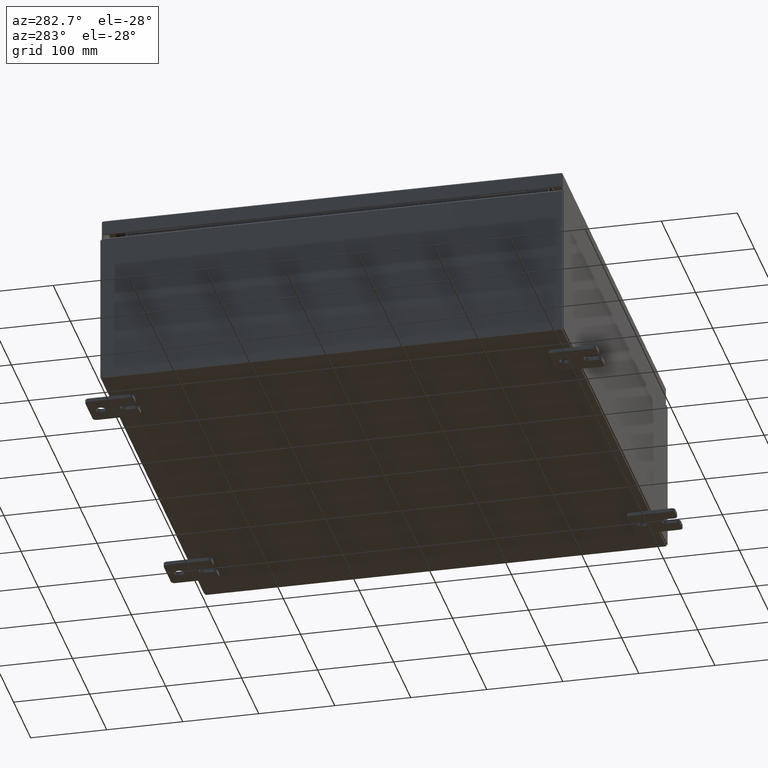
[diagram: clean part render]
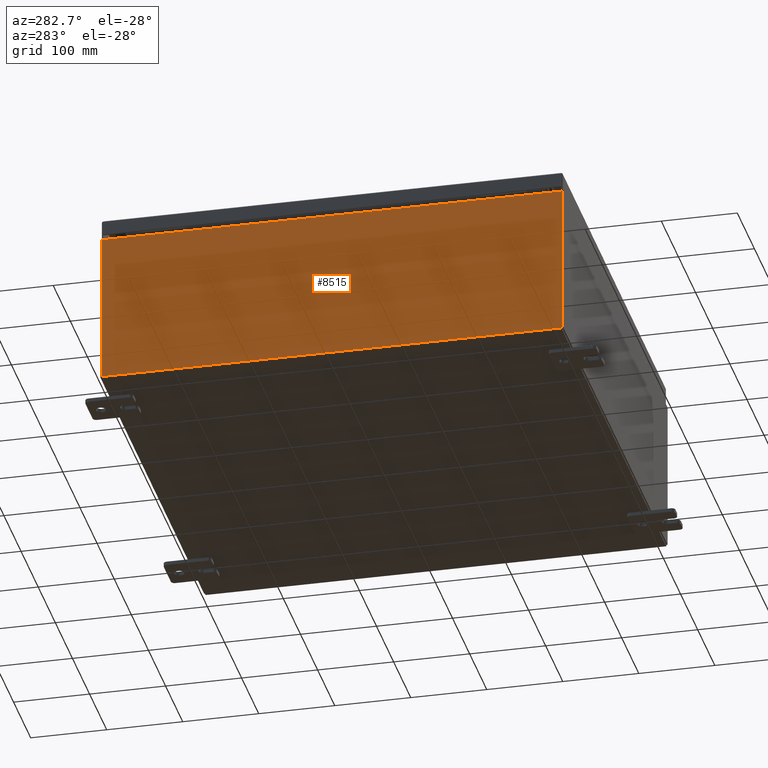
[diagram: same view with one face highlighted and labeled with its STEP entity id]
A machine part, auxiliary view. The second image highlights one B-rep face of the part: STEP entity #8515.
In plain terms, the highlighted planar face has unit normal (1, 0, 0).
Its self-contained STEP definition (entity closure, byte-faithful):
#179 = ORIENTED_EDGE ( 'NONE', *, *, #33899, .T. ) ;
#379 = VECTOR ( 'NONE', #35319, 39.37007874015748100 ) ;
#3293 = ORIENTED_EDGE ( 'NONE', *, *, #30523, .T. ) ;
#5942 = CARTESIAN_POINT ( 'NONE',  ( -12.00000000000000400, 11.92529999999999800, 0.01299999999999984700 ) ) ;
#6442 = CARTESIAN_POINT ( 'NONE',  ( -12.00000000000003200, -11.92530000000000000, 7.837599999999999200 ) ) ;
#6872 = FACE_OUTER_BOUND ( 'NONE', #36132, .T. ) ;
#8515 = ADVANCED_FACE ( 'NONE', ( #6872 ), #23262, .F. ) ;
#9144 = VECTOR ( 'NONE', #47791, 39.37007874015748100 ) ;
#10710 = CARTESIAN_POINT ( 'NONE',  ( -12.00000000000000400, 11.92529999999999800, -4.327932773236202500E-014 ) ) ;
#14982 = ORIENTED_EDGE ( 'NONE', *, *, #62460, .T. ) ;
#15623 = DIRECTION ( 'NONE',  ( 3.584876173029202900E-015, 0.0000000000000000000, -1.000000000000000000 ) ) ;
#19232 = VERTEX_POINT ( 'NONE', #48747 ) ;
#21585 = EDGE_CURVE ( 'NONE', #19232, #33015, #51002, .T. ) ;
#23070 = DIRECTION ( 'NONE',  ( 0.0000000000000000000, 1.000000000000000000, 0.0000000000000000000 ) ) ;
#23262 = PLANE ( 'NONE',  #29390 ) ;
#23471 = DIRECTION ( 'NONE',  ( 1.000000000000000000, 0.0000000000000000000, 3.584876173029202900E-015 ) ) ;
#29390 = AXIS2_PLACEMENT_3D ( 'NONE', #52862, #23471, #57781 ) ;
#29843 = VECTOR ( 'NONE', #23070, 39.37007874015748100 ) ;
#30523 = EDGE_CURVE ( 'NONE', #19232, #36710, #46800, .T. ) ;
#30527 = LINE ( 'NONE', #10710, #56621 ) ;
#32778 = CARTESIAN_POINT ( 'NONE',  ( -12.00000000000000400, 11.92529999999999800, 0.01299999999999983600 ) ) ;
#33015 = VERTEX_POINT ( 'NONE', #32778 ) ;
#33899 = EDGE_CURVE ( 'NONE', #44497, #33015, #30527, .T. ) ;
#35319 = DIRECTION ( 'NONE',  ( -0.0000000000000000000, 1.000000000000000000, -0.0000000000000000000 ) ) ;
#36132 = EDGE_LOOP ( 'NONE', ( #14982, #179, #61829, #3293 ) ) ;
#36710 = VERTEX_POINT ( 'NONE', #6442 ) ;
#39117 = CARTESIAN_POINT ( 'NONE',  ( -12.00000000000003200, 11.92529999999999800, 7.837599999999999200 ) ) ;
#42885 = CARTESIAN_POINT ( 'NONE',  ( -12.00000000000000400, -11.92530000000000400, -4.327932773236202500E-014 ) ) ;
#44497 = VERTEX_POINT ( 'NONE', #39117 ) ;
#46800 = LINE ( 'NONE', #42885, #9144 ) ;
#47791 = DIRECTION ( 'NONE',  ( -3.584876173029202900E-015, 0.0000000000000000000, 1.000000000000000000 ) ) ;
#48747 = CARTESIAN_POINT ( 'NONE',  ( -12.00000000000000400, -11.92530000000000000, 0.01299999999999984700 ) ) ;
#51002 = LINE ( 'NONE', #5942, #379 ) ;
#52862 = CARTESIAN_POINT ( 'NONE',  ( -12.00000000000000400, 0.0000000000000000000, -4.327932773236202500E-014 ) ) ;
#55928 = LINE ( 'NONE', #57389, #29843 ) ;
#56621 = VECTOR ( 'NONE', #15623, 39.37007874015748100 ) ;
#57389 = CARTESIAN_POINT ( 'NONE',  ( -12.00000000000003200, -11.92530000000000400, 7.837599999999999200 ) ) ;
#57781 = DIRECTION ( 'NONE',  ( 3.584876173029202900E-015, 0.0000000000000000000, -1.000000000000000000 ) ) ;
#61829 = ORIENTED_EDGE ( 'NONE', *, *, #21585, .F. ) ;
#62460 = EDGE_CURVE ( 'NONE', #36710, #44497, #55928, .T. ) ;